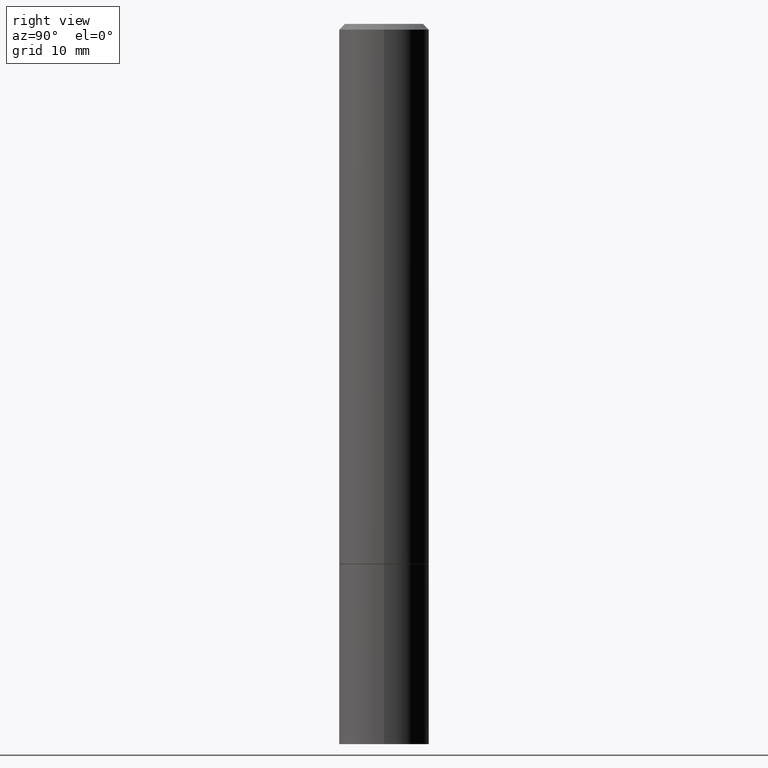
[diagram: clean part render]
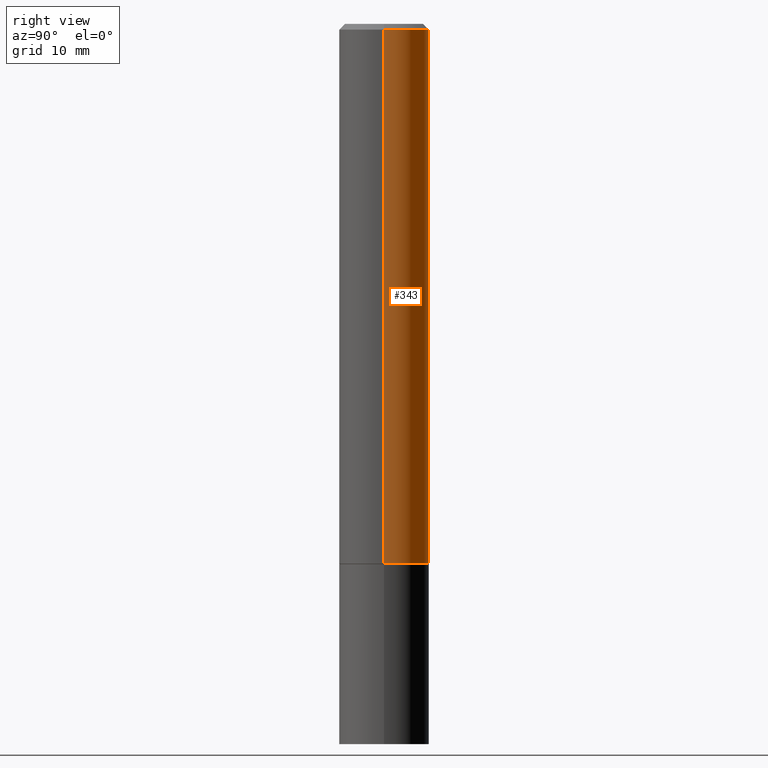
[diagram: same view with one face highlighted and labeled with its STEP entity id]
A machine part, right view. The second image highlights one B-rep face of the part: STEP entity #343.
In plain terms, the highlighted cylindrical surface (partial cylindrical patch) has radius 3.9687 mm, axis along (-0, 0, 1).
Its self-contained STEP definition (entity closure, byte-faithful):
#15 = LINE ( 'NONE', #124, #110 ) ;
#17 = DIRECTION ( 'NONE',  ( -2.445468806185136597E-29, 3.491481338843145583E-15, 1.000000000000000000 ) ) ;
#22 = EDGE_CURVE ( 'NONE', #29, #309, #194, .T. ) ;
#29 = VERTEX_POINT ( 'NONE', #39 ) ;
#35 = ORIENTED_EDGE ( 'NONE', *, *, #131, .F. ) ;
#39 = CARTESIAN_POINT ( 'NONE',  ( 0.1562499999999998057, -1.141782438928663724E-15, -0.02000000000000008021 ) ) ;
#47 = DIRECTION ( 'NONE',  ( -2.445468806185136597E-29, 3.491481338843145583E-15, 1.000000000000000000 ) ) ;
#110 = VECTOR ( 'NONE', #213, 39.37007874015748143 ) ;
#124 = CARTESIAN_POINT ( 'NONE',  ( 0.1562499999999999167, -1.091087918388478385E-15, 7.619026212181144772E-30 ) ) ;
#131 = EDGE_CURVE ( 'NONE', #287, #29, #15, .T. ) ;
#136 = ORIENTED_EDGE ( 'NONE', *, *, #22, .F. ) ;
#138 = AXIS2_PLACEMENT_3D ( 'NONE', #222, #47, #328 ) ;
#143 = VERTEX_POINT ( 'NONE', #352 ) ;
#156 = CARTESIAN_POINT ( 'NONE',  ( -0.1562499999999999167, 1.110223024625155949E-15, -7.685836078523285555E-30 ) ) ;
#160 = CARTESIAN_POINT ( 'NONE',  ( -0.1562499999999998057, 1.021258291611614495E-15, -0.02000000000000008021 ) ) ;
#161 = FACE_OUTER_BOUND ( 'NONE', #264, .T. ) ;
#177 = DIRECTION ( 'NONE',  ( -2.445468806185136597E-29, 3.491481338843145583E-15, 1.000000000000000000 ) ) ;
#183 = AXIS2_PLACEMENT_3D ( 'NONE', #233, #177, #260 ) ;
#194 = CIRCLE ( 'NONE', #183, 0.1562499999999998057 ) ;
#196 = AXIS2_PLACEMENT_3D ( 'NONE', #267, #17, #253 ) ;
#213 = DIRECTION ( 'NONE',  ( -2.445468806185136877E-29, 3.491481338843145188E-15, 1.000000000000000000 ) ) ;
#222 = CARTESIAN_POINT ( 'NONE',  ( 4.582808542790945516E-29, -6.543036028992054911E-15, -1.874000000000000110 ) ) ;
#233 = CARTESIAN_POINT ( 'NONE',  ( 4.890937612370293302E-31, -6.982962677686318726E-17, -0.02000000000000008021 ) ) ;
#239 = DIRECTION ( 'NONE',  ( -2.445468806185136877E-29, 3.491481338843145188E-15, 1.000000000000000000 ) ) ;
#253 = DIRECTION ( 'NONE',  ( 1.000000000000000000, -6.982962677686265133E-15, 4.876176775795935232E-29 ) ) ;
#257 = ORIENTED_EDGE ( 'NONE', *, *, #285, .T. ) ;
#260 = DIRECTION ( 'NONE',  ( 1.000000000000000000, -6.982962677686266711E-15, 0.000000000000000000 ) ) ;
#263 = EDGE_CURVE ( 'NONE', #287, #143, #300, .T. ) ;
#264 = EDGE_LOOP ( 'NONE', ( #293, #257, #136, #35 ) ) ;
#267 = CARTESIAN_POINT ( 'NONE',  ( 0.000000000000000000, 0.000000000000000000, 0.000000000000000000 ) ) ;
#274 = CYLINDRICAL_SURFACE ( 'NONE', #196, 0.1562499999999999167 ) ;
#285 = EDGE_CURVE ( 'NONE', #143, #309, #332, .T. ) ;
#287 = VERTEX_POINT ( 'NONE', #297 ) ;
#293 = ORIENTED_EDGE ( 'NONE', *, *, #263, .T. ) ;
#297 = CARTESIAN_POINT ( 'NONE',  ( 0.1562500000000000000, -7.634123947380534085E-15, -1.874000000000000110 ) ) ;
#300 = CIRCLE ( 'NONE', #138, 0.1562500000000000000 ) ;
#309 = VERTEX_POINT ( 'NONE', #160 ) ;
#313 = VECTOR ( 'NONE', #239, 39.37007874015748143 ) ;
#328 = DIRECTION ( 'NONE',  ( 1.000000000000000000, -6.982962677686269077E-15, 0.000000000000000000 ) ) ;
#332 = LINE ( 'NONE', #156, #313 ) ;
#343 = ADVANCED_FACE ( 'NONE', ( #161 ), #274, .T. ) ;
#352 = CARTESIAN_POINT ( 'NONE',  ( -0.1562500000000000000, -2.196209803259300592E-15, -1.874000000000000110 ) ) ;